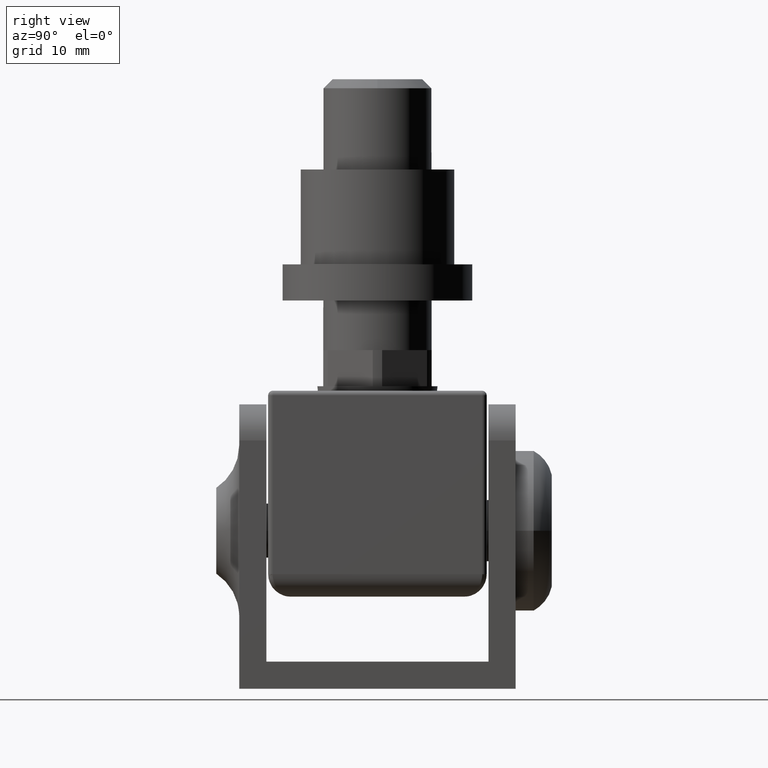
[diagram: clean part render]
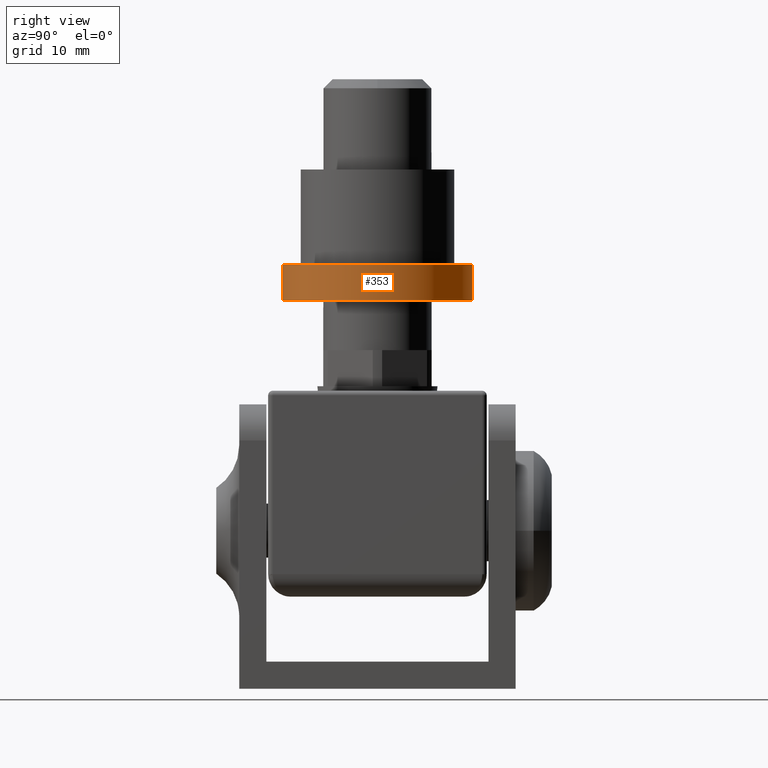
[diagram: same view with one face highlighted and labeled with its STEP entity id]
A machine part, right view. The second image highlights one B-rep face of the part: STEP entity #353.
In plain terms, the highlighted cylindrical surface (bore or boss wall) has radius 10.5 mm, axis along (0, 0, -1).
Its self-contained STEP definition (entity closure, byte-faithful):
#174 = EDGE_CURVE ( 'NONE', #14914, #14914, #13620, .T. ) ;
#238 = DIRECTION ( 'NONE',  ( 0.000000000000000000, 1.000000000000000000, 2.891205793294678326E-16 ) ) ;
#353 = ADVANCED_FACE ( 'NONE', ( #1735, #9402 ), #13814, .T. ) ;
#1369 = DIRECTION ( 'NONE',  ( -0.000000000000000000, 2.755455298081544778E-16, -1.000000000000000000 ) ) ;
#1735 = FACE_OUTER_BOUND ( 'NONE', #7962, .T. ) ;
#1952 = CARTESIAN_POINT ( 'NONE',  ( 0.000000000000000000, 2.740147213092202095E-15, -7.250000000000006217 ) ) ;
#3122 = AXIS2_PLACEMENT_3D ( 'NONE', #13113, #6017, #5910 ) ;
#3839 = ORIENTED_EDGE ( 'NONE', *, *, #4717, .F. ) ;
#4717 = EDGE_CURVE ( 'NONE', #9389, #9389, #9935, .T. ) ;
#5910 = DIRECTION ( 'NONE',  ( 0.000000000000000000, 1.000000000000000000, 2.478176394252582620E-16 ) ) ;
#6017 = DIRECTION ( 'NONE',  ( -0.000000000000000000, 2.755455298081544778E-16, -1.000000000000000000 ) ) ;
#6418 = CARTESIAN_POINT ( 'NONE',  ( 0.000000000000000000, 10.49999999999999822, -7.250000000000003553 ) ) ;
#7705 = DIRECTION ( 'NONE',  ( 0.000000000000000000, 1.000000000000000000, 2.478176394252582127E-16 ) ) ;
#7962 = EDGE_LOOP ( 'NONE', ( #9834 ) ) ;
#8136 = AXIS2_PLACEMENT_3D ( 'NONE', #1952, #12640, #7705 ) ;
#9389 = VERTEX_POINT ( 'NONE', #6418 ) ;
#9402 = FACE_OUTER_BOUND ( 'NONE', #15240, .T. ) ;
#9834 = ORIENTED_EDGE ( 'NONE', *, *, #174, .T. ) ;
#9935 = CIRCLE ( 'NONE', #3122, 10.49999999999999467 ) ;
#11324 = AXIS2_PLACEMENT_3D ( 'NONE', #14348, #1369, #238 ) ;
#12262 = CARTESIAN_POINT ( 'NONE',  ( 0.000000000000000000, 10.50000000000000178, -3.250000000000000000 ) ) ;
#12640 = DIRECTION ( 'NONE',  ( -0.000000000000000000, 2.755455298081544778E-16, -1.000000000000000000 ) ) ;
#13113 = CARTESIAN_POINT ( 'NONE',  ( 0.000000000000000000, 2.740147213092202884E-15, -7.250000000000006217 ) ) ;
#13620 = CIRCLE ( 'NONE', #11324, 10.50000000000000000 ) ;
#13814 = CYLINDRICAL_SURFACE ( 'NONE', #8136, 10.49999999999999822 ) ;
#14348 = CARTESIAN_POINT ( 'NONE',  ( 0.000000000000000000, 1.637965093859584381E-15, -3.250000000000002665 ) ) ;
#14914 = VERTEX_POINT ( 'NONE', #12262 ) ;
#15240 = EDGE_LOOP ( 'NONE', ( #3839 ) ) ;